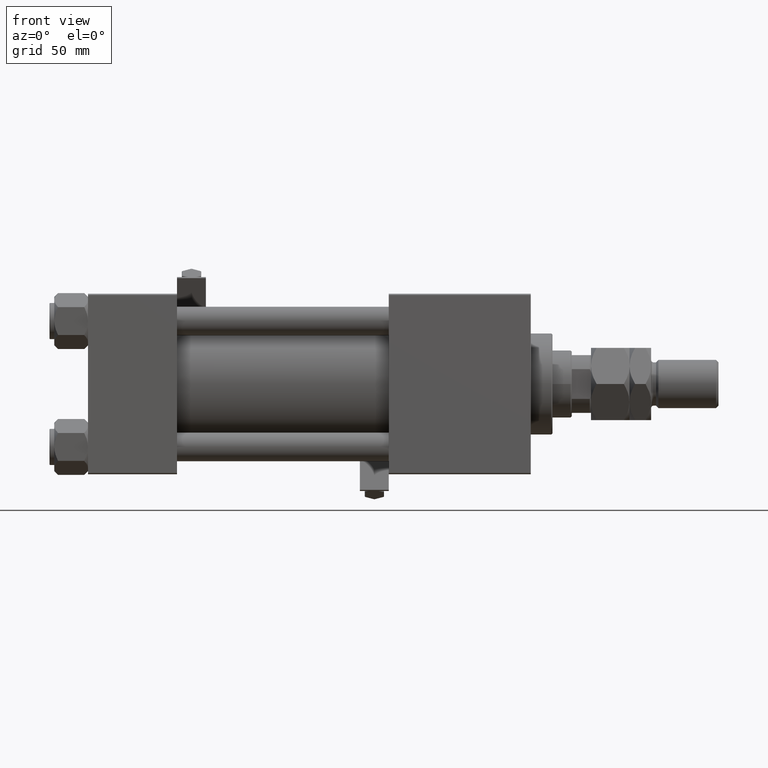
[diagram: clean part render]
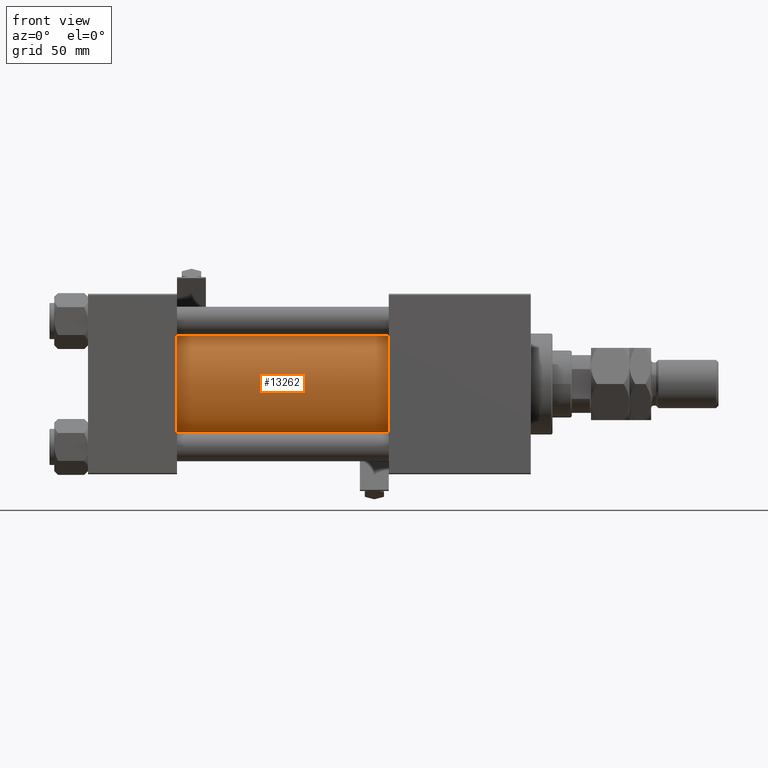
[diagram: same view with one face highlighted and labeled with its STEP entity id]
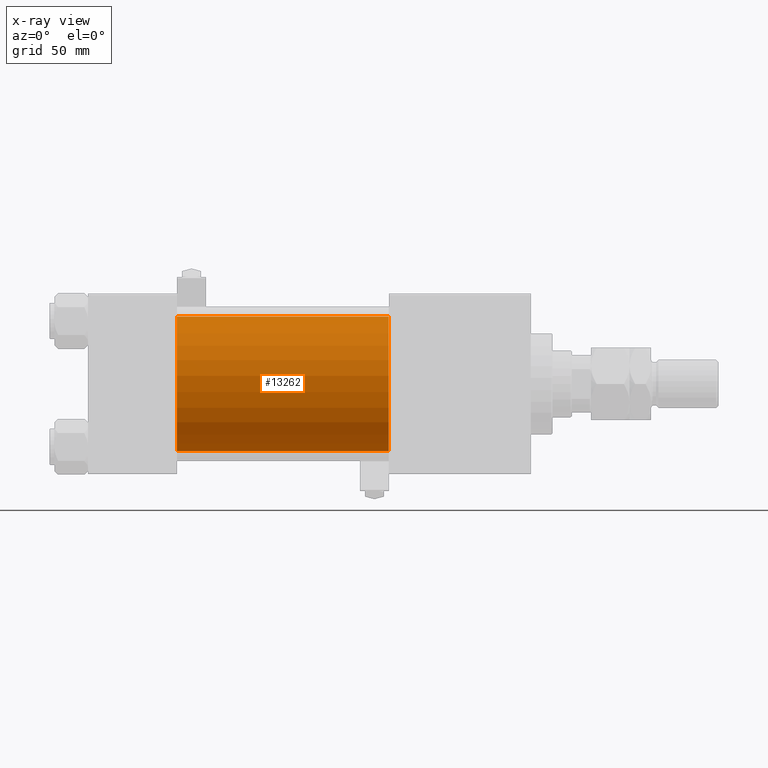
[diagram: x-ray of the same camera — body ghosted, the highlighted face saturated]
A machine part, front view. The second image highlights one B-rep face of the part: STEP entity #13262.
The next image is the same camera in x-ray: the body ghosted, the highlighted face saturated — about 0% of this face is hidden behind the body in this view.
In plain terms, the highlighted cylindrical surface (partial cylindrical patch) has radius 28 mm, axis along (-1, -0, -0).
Its self-contained STEP definition (entity closure, byte-faithful):
#1182 = CARTESIAN_POINT ( 'NONE',  ( 125.0000000000000000, -2.602085213965210642E-15, 0.000000000000000000 ) ) ;
#1293 = VERTEX_POINT ( 'NONE', #12277 ) ;
#1624 = LINE ( 'NONE', #46776, #46097 ) ;
#1760 = CARTESIAN_POINT ( 'NONE',  ( 37.00000000000000711, -2.602085213965210642E-15, 28.00000000000000000 ) ) ;
#4490 = DIRECTION ( 'NONE',  ( 0.000000000000000000, 0.000000000000000000, 1.000000000000000000 ) ) ;
#4738 = CARTESIAN_POINT ( 'NONE',  ( 125.0000000000000000, -2.602085213965210642E-15, 0.000000000000000000 ) ) ;
#5707 = EDGE_LOOP ( 'NONE', ( #9593, #45144, #10327, #44197 ) ) ;
#8489 = AXIS2_PLACEMENT_3D ( 'NONE', #42149, #45384, #4490 ) ;
#8833 = VERTEX_POINT ( 'NONE', #24154 ) ;
#9593 = ORIENTED_EDGE ( 'NONE', *, *, #45594, .F. ) ;
#10186 = VECTOR ( 'NONE', #16033, 1000.000000000000000 ) ;
#10327 = ORIENTED_EDGE ( 'NONE', *, *, #50062, .T. ) ;
#12277 = CARTESIAN_POINT ( 'NONE',  ( 125.0000000000000000, 8.269258236473784371E-16, -28.00000000000000000 ) ) ;
#13262 = ADVANCED_FACE ( 'NONE', ( #49906 ), #49365, .T. ) ;
#13545 = DIRECTION ( 'NONE',  ( 0.000000000000000000, 0.000000000000000000, 1.000000000000000000 ) ) ;
#14440 = DIRECTION ( 'NONE',  ( -1.000000000000000000, -0.000000000000000000, -0.000000000000000000 ) ) ;
#15901 = AXIS2_PLACEMENT_3D ( 'NONE', #4738, #42127, #13545 ) ;
#16033 = DIRECTION ( 'NONE',  ( -1.000000000000000000, -0.000000000000000000, -0.000000000000000000 ) ) ;
#16160 = CIRCLE ( 'NONE', #8489, 28.00000000000000000 ) ;
#16626 = EDGE_CURVE ( 'NONE', #24167, #1293, #50241, .T. ) ;
#17479 = DIRECTION ( 'NONE',  ( 0.000000000000000000, 0.000000000000000000, -1.000000000000000000 ) ) ;
#20569 = LINE ( 'NONE', #32326, #10186 ) ;
#20943 = EDGE_CURVE ( 'NONE', #23505, #8833, #16160, .T. ) ;
#23505 = VERTEX_POINT ( 'NONE', #1760 ) ;
#24154 = CARTESIAN_POINT ( 'NONE',  ( 37.00000000000000711, 8.269258236473784371E-16, -28.00000000000000000 ) ) ;
#24167 = VERTEX_POINT ( 'NONE', #40752 ) ;
#32326 = CARTESIAN_POINT ( 'NONE',  ( 125.0000000000000000, 8.269258236473784371E-16, -28.00000000000000000 ) ) ;
#39969 = AXIS2_PLACEMENT_3D ( 'NONE', #1182, #46073, #17479 ) ;
#40752 = CARTESIAN_POINT ( 'NONE',  ( 125.0000000000000000, -2.602085213965210642E-15, 28.00000000000000000 ) ) ;
#42127 = DIRECTION ( 'NONE',  ( -1.000000000000000000, -0.000000000000000000, -0.000000000000000000 ) ) ;
#42149 = CARTESIAN_POINT ( 'NONE',  ( 37.00000000000000711, -2.602085213965210642E-15, 0.000000000000000000 ) ) ;
#44197 = ORIENTED_EDGE ( 'NONE', *, *, #20943, .T. ) ;
#45144 = ORIENTED_EDGE ( 'NONE', *, *, #16626, .F. ) ;
#45384 = DIRECTION ( 'NONE',  ( 1.000000000000000000, -0.000000000000000000, 0.000000000000000000 ) ) ;
#45594 = EDGE_CURVE ( 'NONE', #1293, #8833, #20569, .T. ) ;
#46073 = DIRECTION ( 'NONE',  ( 1.000000000000000000, 0.000000000000000000, 0.000000000000000000 ) ) ;
#46097 = VECTOR ( 'NONE', #14440, 1000.000000000000000 ) ;
#46776 = CARTESIAN_POINT ( 'NONE',  ( 125.0000000000000000, -2.602085213965210642E-15, 28.00000000000000000 ) ) ;
#49365 = CYLINDRICAL_SURFACE ( 'NONE', #15901, 28.00000000000000000 ) ;
#49906 = FACE_OUTER_BOUND ( 'NONE', #5707, .T. ) ;
#50062 = EDGE_CURVE ( 'NONE', #24167, #23505, #1624, .T. ) ;
#50241 = CIRCLE ( 'NONE', #39969, 28.00000000000000000 ) ;